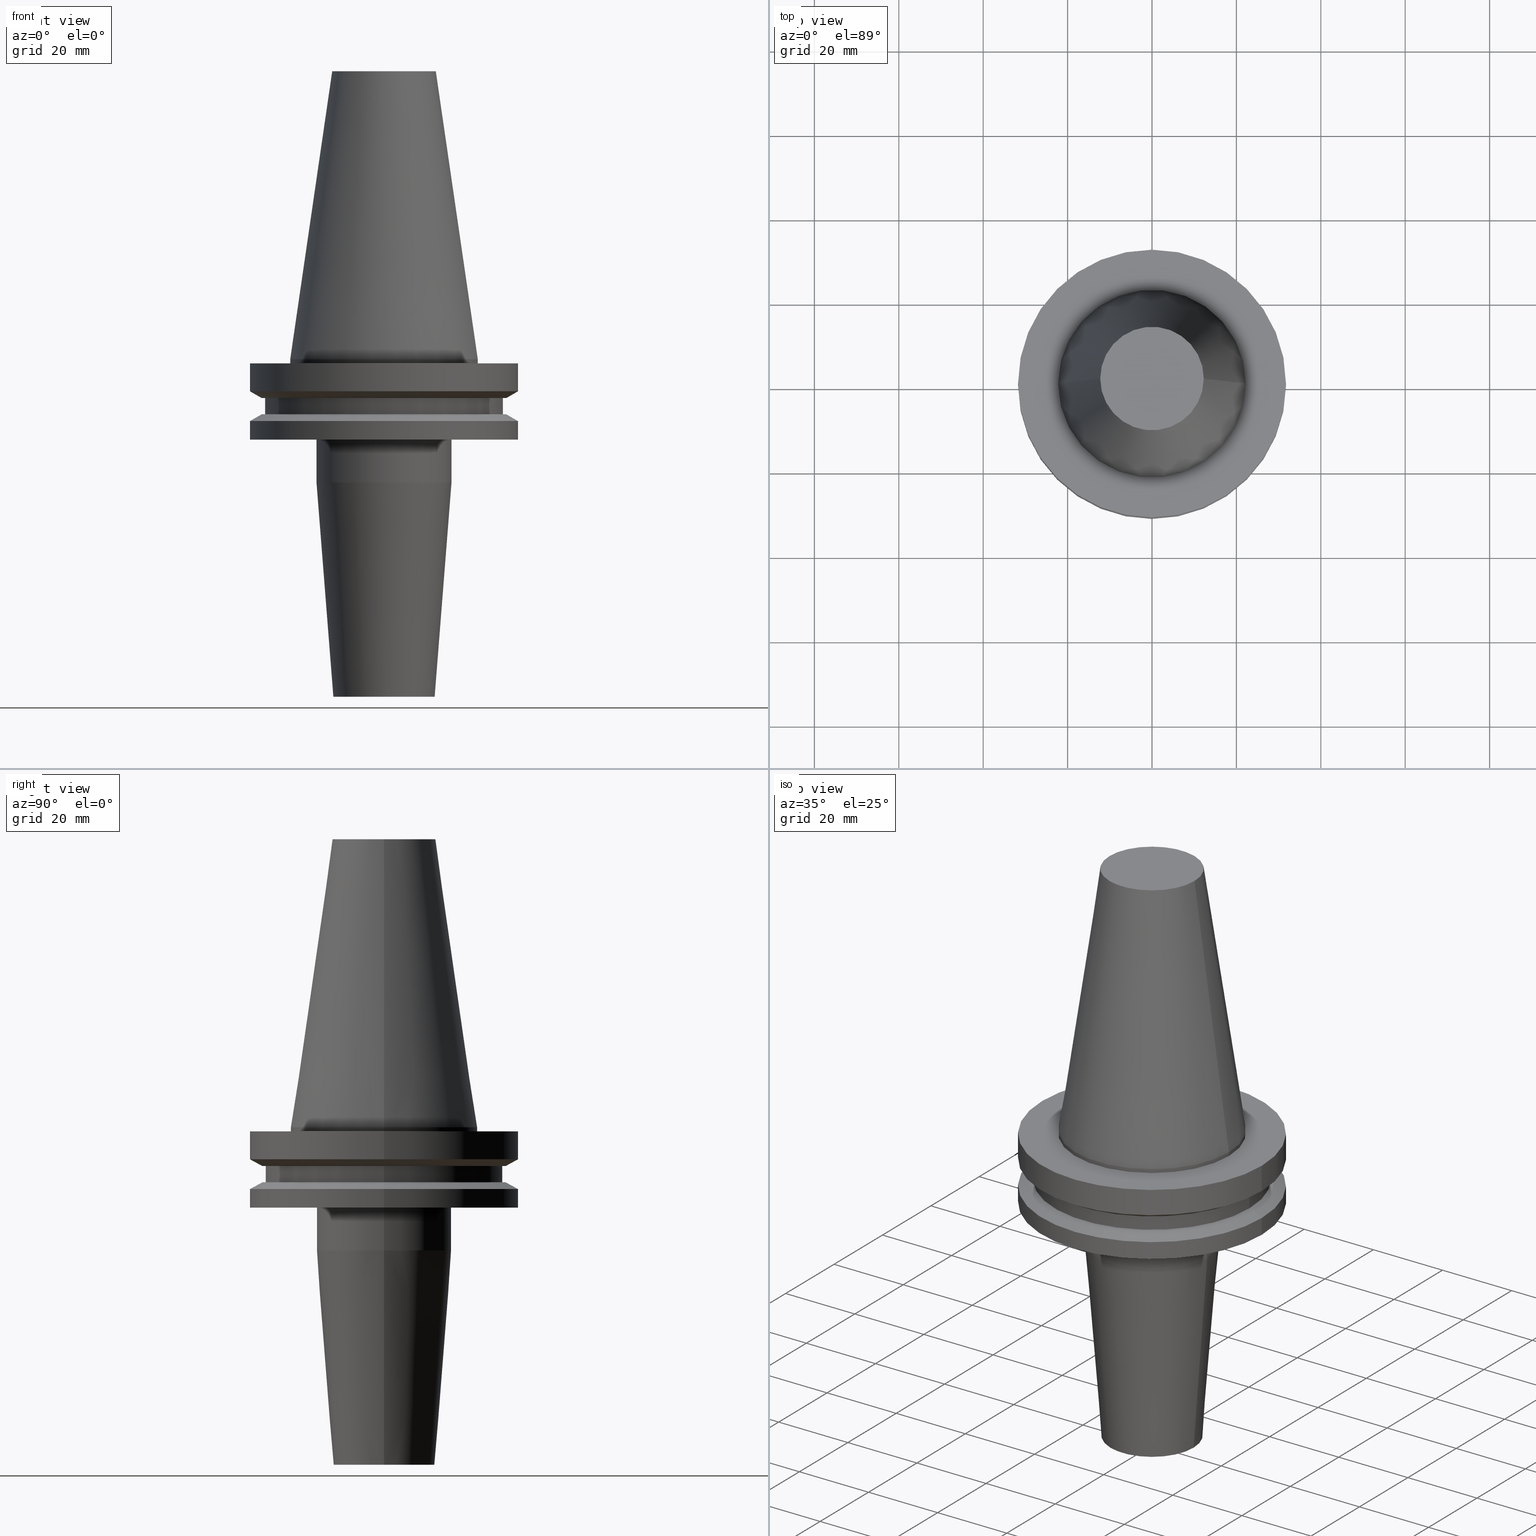
[diagram: canonical four-view strip — front | top / right | iso, engineering-drawing reading convention]
A machine part, canonical four-view strip (front | top / right | iso — engineering-drawing reading convention). The complete STEP part file that produces these views, byte-faithful:
ISO-10303-21;
HEADER;
FILE_DESCRIPTION (( 'STEP AP203' ),
    '1' );
FILE_NAME ('BCV40-SF12-80.STEP',
    '2022-02-23T17:13:26',
    ( '' ),
    ( '' ),
    'SwSTEP 2.0',
    'SolidWorks 2021',
    '' );
FILE_SCHEMA (( 'CONFIG_CONTROL_DESIGN' ));
ENDSEC;

DATA;
#1 = DIRECTION ( 'NONE',  ( -0.8660254037844389297, 1.060575238724907285E-16, 0.4999999999999995004 ) ) ;
#2 = ORIENTED_EDGE ( 'NONE', *, *, #80, .F. ) ;
#3 = AXIS2_PLACEMENT_3D ( 'NONE', #245, #418, #174 ) ;
#4 = ADVANCED_FACE ( 'NONE', ( #33 ), #757, .T. ) ;
#5 = CARTESIAN_POINT ( 'NONE',  ( -12.27178102086201150, 0.000000000000000000, 68.25000000000000000 ) ) ;
#6 = VERTEX_POINT ( 'NONE', #38 ) ;
#7 = MECHANICAL_CONTEXT ( 'NONE', #378, 'mechanical' ) ;
#8 = CONICAL_SURFACE ( 'NONE', #11, 31.75000000000000000, 1.047197551196597853 ) ;
#9 = EDGE_CURVE ( 'NONE', #224, #691, #81, .T. ) ;
#10 = VERTEX_POINT ( 'NONE', #78 ) ;
#11 = AXIS2_PLACEMENT_3D ( 'NONE', #342, #473, #530 ) ;
#12 = PERSON_AND_ORGANIZATION ( #540, #523 ) ;
#13 = CARTESIAN_POINT ( 'NONE',  ( 0.000000000000000000, 0.000000000000000000, 68.25000000000000000 ) ) ;
#14 = VERTEX_POINT ( 'NONE', #85 ) ;
#15 = CIRCLE ( 'NONE', #419, 15.99999999999999289 ) ;
#16 = EDGE_CURVE ( 'NONE', #54, #725, #193, .T. ) ;
#17 = DIRECTION ( 'NONE',  ( 1.000000000000000000, 0.000000000000000000, 0.000000000000000000 ) ) ;
#18 = CC_DESIGN_PERSON_AND_ORGANIZATION_ASSIGNMENT ( #391, #35, ( #675 ) ) ;
#19 = CIRCLE ( 'NONE', #263, 28.17999999999999972 ) ;
#20 = DIRECTION ( 'NONE',  ( -0.000000000000000000, -0.000000000000000000, 1.000000000000000000 ) ) ;
#21 = ORIENTED_EDGE ( 'NONE', *, *, #290, .T. ) ;
#22 = AXIS2_PLACEMENT_3D ( 'NONE', #87, #32, #459 ) ;
#23 = DATE_TIME_ROLE ( 'creation_date' ) ;
#24 = AXIS2_PLACEMENT_3D ( 'NONE', #611, #748, #386 ) ;
#25 = ORIENTED_EDGE ( 'NONE', *, *, #469, .F. ) ;
#26 = VERTEX_POINT ( 'NONE', #307 ) ;
#27 = CARTESIAN_POINT ( 'NONE',  ( 0.000000000000000000, 0.000000000000000000, -80.00000000000000000 ) ) ;
#28 = APPROVAL_STATUS ( 'not_yet_approved' ) ;
#29 = CIRCLE ( 'NONE', #673, 31.75000000000000000 ) ;
#30 = CC_DESIGN_SECURITY_CLASSIFICATION ( #355, ( #675 ) ) ;
#31 = EDGE_LOOP ( 'NONE', ( #127, #89, #602, #324 ) ) ;
#32 = DIRECTION ( 'NONE',  ( -0.000000000000000000, -0.000000000000000000, 1.000000000000000000 ) ) ;
#33 = FACE_OUTER_BOUND ( 'NONE', #308, .T. ) ;
#34 = ORIENTED_EDGE ( 'NONE', *, *, #589, .F. ) ;
#35 = PERSON_AND_ORGANIZATION_ROLE ( 'design_supplier' ) ;
#36 = DIRECTION ( 'NONE',  ( -0.000000000000000000, -0.000000000000000000, 1.000000000000000000 ) ) ;
#37 = AXIS2_PLACEMENT_3D ( 'NONE', #313, #560, #756 ) ;
#38 = CARTESIAN_POINT ( 'NONE',  ( -28.17999999999999972, 3.451054679997241634E-15, -9.204999999999991189 ) ) ;
#39 = ADVANCED_FACE ( 'NONE', ( #674 ), #257, .T. ) ;
#40 = DIRECTION ( 'NONE',  ( 1.000000000000000000, 0.000000000000000000, 0.000000000000000000 ) ) ;
#41 = CARTESIAN_POINT ( 'NONE',  ( 0.000000000000000000, 0.000000000000000000, 0.000000000000000000 ) ) ;
#42 = VERTEX_POINT ( 'NONE', #503 ) ;
#43 = PERSON_AND_ORGANIZATION ( #540, #523 ) ;
#44 = DIRECTION ( 'NONE',  ( 1.000000000000000000, 0.000000000000000000, 0.000000000000000000 ) ) ;
#45 = EDGE_CURVE ( 'NONE', #539, #26, #220, .T. ) ;
#46 = PLANE ( 'NONE',  #661 ) ;
#47 = VERTEX_POINT ( 'NONE', #135 ) ;
#48 = DIRECTION ( 'NONE',  ( 0.000000000000000000, -0.000000000000000000, 1.000000000000000000 ) ) ;
#49 = CARTESIAN_POINT ( 'NONE',  ( 22.22500000000000142, 2.721777511104992849E-15, 0.000000000000000000 ) ) ;
#50 = EDGE_LOOP ( 'NONE', ( #639, #276, #136, #590 ) ) ;
#51 = CYLINDRICAL_SURFACE ( 'NONE', #516, 31.75000000000000000 ) ;
#52 = LINE ( 'NONE', #524, #214 ) ;
#53 = ADVANCED_FACE ( 'NONE', ( #199 ), #185, .T. ) ;
#54 = VERTEX_POINT ( 'NONE', #451 ) ;
#55 = DIRECTION ( 'NONE',  ( 1.000000000000000000, 0.000000000000000000, 0.000000000000000000 ) ) ;
#56 = CARTESIAN_POINT ( 'NONE',  ( -31.75000000000000000, 3.888253587292846476E-15, -1.000000000000000888 ) ) ;
#57 = EDGE_LOOP ( 'NONE', ( #407, #495, #569, #230 ) ) ;
#58 = DIRECTION ( 'NONE',  ( 1.000000000000000000, 0.000000000000000000, 0.000000000000000000 ) ) ;
#59 = DIRECTION ( 'NONE',  ( 1.000000000000000000, 0.000000000000000000, 0.000000000000000000 ) ) ;
#60 = EDGE_LOOP ( 'NONE', ( #465, #556, #72, #196 ) ) ;
#61 = CIRCLE ( 'NONE', #92, 31.75000000000000000 ) ;
#62 = CARTESIAN_POINT ( 'NONE',  ( 0.000000000000000000, 0.000000000000000000, 68.25000000000000000 ) ) ;
#63 = EDGE_CURVE ( 'NONE', #26, #539, #607, .T. ) ;
#64 = FACE_OUTER_BOUND ( 'NONE', #498, .T. ) ;
#65 = ORIENTED_EDGE ( 'NONE', *, *, #366, .T. ) ;
#66 = CARTESIAN_POINT ( 'NONE',  ( -22.22500000000000142, 2.721777511104992849E-15, -1.000000000000000888 ) ) ;
#67 = AXIS2_PLACEMENT_3D ( 'NONE', #563, #258, #246 ) ;
#68 = ORIENTED_EDGE ( 'NONE', *, *, #390, .T. ) ;
#69 = LINE ( 'NONE', #345, #731 ) ;
#70 = EDGE_LOOP ( 'NONE', ( #654, #21, #549, #346 ) ) ;
#71 = ADVANCED_FACE ( 'NONE', ( #383 ), #634, .T. ) ;
#72 = ORIENTED_EDGE ( 'NONE', *, *, #718, .F. ) ;
#73 = PERSON_AND_ORGANIZATION ( #540, #523 ) ;
#74 = DIRECTION ( 'NONE',  ( -0.000000000000000000, -0.000000000000000000, 1.000000000000000000 ) ) ;
#75 = CARTESIAN_POINT ( 'NONE',  ( 0.000000000000000000, 0.000000000000000000, 0.000000000000000000 ) ) ;
#76 = CC_DESIGN_DATE_AND_TIME_ASSIGNMENT ( #550, #23, ( #297 ) ) ;
#77 = CALENDAR_DATE ( 2022, 23, 2 ) ;
#78 = CARTESIAN_POINT ( 'NONE',  ( 15.99999999999999289, 0.000000000000000000, -29.17518105529640948 ) ) ;
#79 = ORIENTED_EDGE ( 'NONE', *, *, #431, .T. ) ;
#80 = EDGE_CURVE ( 'NONE', #177, #691, #29, .T. ) ;
#81 = LINE ( 'NONE', #261, #320 ) ;
#82 = COORDINATED_UNIVERSAL_TIME_OFFSET ( 6, 0, .BEHIND. ) ;
#83 = EDGE_CURVE ( 'NONE', #47, #725, #314, .T. ) ;
#84 = VECTOR ( 'NONE', #323, 999.9999999999998863 ) ;
#85 = CARTESIAN_POINT ( 'NONE',  ( 12.27178102086201150, 2.112318622904291439E-15, 68.25000000000000000 ) ) ;
#86 = CIRCLE ( 'NONE', #37, 31.75000000000000000 ) ;
#87 = CARTESIAN_POINT ( 'NONE',  ( 0.000000000000000000, 0.000000000000000000, -19.04999999999999716 ) ) ;
#88 = MANIFOLD_SOLID_BREP ( 'SF Revolve2', #306 ) ;
#89 = ORIENTED_EDGE ( 'NONE', *, *, #326, .F. ) ;
#90 = PRODUCT_RELATED_PRODUCT_CATEGORY ( 'detail', '', ( #689 ) ) ;
#91 = CARTESIAN_POINT ( 'NONE',  ( 0.000000000000000000, 0.000000000000000000, -13.05499999999999794 ) ) ;
#92 = AXIS2_PLACEMENT_3D ( 'NONE', #266, #36, #260 ) ;
#93 = CARTESIAN_POINT ( 'NONE',  ( -15.99999999999999289, 1.959434878635764343E-15, -29.17518105529640948 ) ) ;
#94 = EDGE_CURVE ( 'NONE', #311, #47, #617, .T. ) ;
#95 = ORIENTED_EDGE ( 'NONE', *, *, #332, .T. ) ;
#96 = CARTESIAN_POINT ( 'NONE',  ( 0.000000000000000000, 0.000000000000000000, 0.000000000000000000 ) ) ;
#97 = DIRECTION ( 'NONE',  ( -0.07845909572783764385, 9.608468044709212160E-18, 0.9969173337331286300 ) ) ;
#98 = LOCAL_TIME ( 11, 13, 26.00000000000000000, #615 ) ;
#99 = EDGE_LOOP ( 'NONE', ( #633, #265, #651, #163 ) ) ;
#100 = CARTESIAN_POINT ( 'NONE',  ( 0.000000000000000000, 0.000000000000000000, -19.04999999999999716 ) ) ;
#101 = CARTESIAN_POINT ( 'NONE',  ( 31.75000000000000000, 0.000000000000000000, 68.25000000000000000 ) ) ;
#102 = EDGE_LOOP ( 'NONE', ( #642, #763, #330, #745 ) ) ;
#103 = CARTESIAN_POINT ( 'NONE',  ( 0.000000000000000000, 0.000000000000000000, -13.05499999999999794 ) ) ;
#104 = ADVANCED_FACE ( 'NONE', ( #622 ), #316, .T. ) ;
#105 = CARTESIAN_POINT ( 'NONE',  ( 0.000000000000000000, 0.000000000000000000, 68.25000000000000000 ) ) ;
#106 = ORIENTED_EDGE ( 'NONE', *, *, #424, .T. ) ;
#107 = CARTESIAN_POINT ( 'NONE',  ( 0.000000000000000000, 0.000000000000000000, -19.04999999999999716 ) ) ;
#108 = CARTESIAN_POINT ( 'NONE',  ( 31.75000000000000000, 0.000000000000000000, -1.000000000000000888 ) ) ;
#109 = ORIENTED_EDGE ( 'NONE', *, *, #275, .T. ) ;
#110 = LOCAL_TIME ( 11, 13, 26.00000000000000000, #82 ) ;
#111 = CARTESIAN_POINT ( 'NONE',  ( 0.000000000000000000, 0.000000000000000000, -13.05499999999999794 ) ) ;
#112 = CC_DESIGN_PERSON_AND_ORGANIZATION_ASSIGNMENT ( #73, #487, ( #297 ) ) ;
#113 = CARTESIAN_POINT ( 'NONE',  ( 31.75000000000000000, 0.000000000000000000, -7.605276606597335842 ) ) ;
#114 = AXIS2_PLACEMENT_3D ( 'NONE', #665, #537, #713 ) ;
#115 = EDGE_CURVE ( 'NONE', #618, #667, #732, .T. ) ;
#116 = ORIENTED_EDGE ( 'NONE', *, *, #644, .F. ) ;
#117 = DIRECTION ( 'NONE',  ( 1.000000000000000000, 0.000000000000000000, 0.000000000000000000 ) ) ;
#118 = CARTESIAN_POINT ( 'NONE',  ( 0.000000000000000000, 0.000000000000000000, 68.25000000000000000 ) ) ;
#119 = EDGE_LOOP ( 'NONE', ( #238, #593 ) ) ;
#120 = EDGE_CURVE ( 'NONE', #395, #187, #389, .T. ) ;
#121 = CARTESIAN_POINT ( 'NONE',  ( 0.000000000000000000, 0.000000000000000000, -80.00000000000000000 ) ) ;
#122 = DIRECTION ( 'NONE',  ( -0.000000000000000000, -0.000000000000000000, 1.000000000000000000 ) ) ;
#123 = VERTEX_POINT ( 'NONE', #632 ) ;
#124 = DIRECTION ( 'NONE',  ( -0.000000000000000000, -0.000000000000000000, 1.000000000000000000 ) ) ;
#125 = CYLINDRICAL_SURFACE ( 'NONE', #483, 31.75000000000000000 ) ;
#126 = AXIS2_PLACEMENT_3D ( 'NONE', #186, #752, #575 ) ;
#127 = ORIENTED_EDGE ( 'NONE', *, *, #180, .F. ) ;
#128 = DIRECTION ( 'NONE',  ( -0.000000000000000000, -0.000000000000000000, 1.000000000000000000 ) ) ;
#129 = CIRCLE ( 'NONE', #567, 31.74999999999999289 ) ;
#130 = LINE ( 'NONE', #608, #551 ) ;
#131 = ORIENTED_EDGE ( 'NONE', *, *, #413, .T. ) ;
#132 = CARTESIAN_POINT ( 'NONE',  ( -5.999999999999991118, 7.347880794884108889E-16, 0.000000000000000000 ) ) ;
#133 = FACE_OUTER_BOUND ( 'NONE', #647, .T. ) ;
#134 = DIRECTION ( 'NONE',  ( 1.000000000000000000, 0.000000000000000000, 0.000000000000000000 ) ) ;
#135 = CARTESIAN_POINT ( 'NONE',  ( -22.22500000000000142, 0.000000000000000000, 0.000000000000000000 ) ) ;
#136 = ORIENTED_EDGE ( 'NONE', *, *, #580, .F. ) ;
#137 = CARTESIAN_POINT ( 'NONE',  ( 22.22500000000000142, 0.000000000000000000, 68.25000000000000000 ) ) ;
#138 = CALENDAR_DATE ( 2022, 23, 2 ) ;
#139 = VERTEX_POINT ( 'NONE', #108 ) ;
#140 = APPROVAL ( #235, 'UNSPECIFIED' ) ;
#141 = DIRECTION ( 'NONE',  ( -1.000000000000000000, 0.000000000000000000, 0.000000000000000000 ) ) ;
#142 = DIRECTION ( 'NONE',  ( 1.000000000000000000, 0.000000000000000000, 0.000000000000000000 ) ) ;
#143 = APPROVAL_ROLE ( '' ) ;
#144 = CARTESIAN_POINT ( 'NONE',  ( 5.999999999999991118, 0.000000000000000000, 0.000000000000000000 ) ) ;
#145 = DIRECTION ( 'NONE',  ( -0.000000000000000000, -0.000000000000000000, 1.000000000000000000 ) ) ;
#146 = DATE_AND_TIME ( #501, #110 ) ;
#147 = CARTESIAN_POINT ( 'NONE',  ( -28.97919780457008088, 0.000000000000000000, -13.05499999999999794 ) ) ;
#148 = DIRECTION ( 'NONE',  ( -1.000000000000000000, 0.000000000000000000, 0.000000000000000000 ) ) ;
#149 = CONICAL_SURFACE ( 'NONE', #656, 22.22500000000000142, 0.1448138465474119174 ) ;
#150 = VERTEX_POINT ( 'NONE', #702 ) ;
#151 = CARTESIAN_POINT ( 'NONE',  ( 0.000000000000000000, 28.97919780457007732, -9.204999999999996518 ) ) ;
#152 = CARTESIAN_POINT ( 'NONE',  ( -22.22500000000000142, 2.721777511104992849E-15, 68.25000000000000000 ) ) ;
#153 = APPROVAL_PERSON_ORGANIZATION ( #325, #175, #737 ) ;
#154 = ORIENTED_EDGE ( 'NONE', *, *, #431, .F. ) ;
#155 = ADVANCED_FACE ( 'NONE', ( #274, #471 ), #336, .F. ) ;
#156 = DIRECTION ( 'NONE',  ( -0.000000000000000000, -0.000000000000000000, 1.000000000000000000 ) ) ;
#157 = LINE ( 'NONE', #152, #630 ) ;
#158 = EDGE_LOOP ( 'NONE', ( #750, #703 ) ) ;
#159 = AXIS2_PLACEMENT_3D ( 'NONE', #195, #749, #626 ) ;
#160 = CYLINDRICAL_SURFACE ( 'NONE', #328, 28.17999999999999972 ) ;
#161 = EDGE_CURVE ( 'NONE', #667, #6, #600, .T. ) ;
#162 = DIRECTION ( 'NONE',  ( -0.000000000000000000, -0.000000000000000000, 1.000000000000000000 ) ) ;
#163 = ORIENTED_EDGE ( 'NONE', *, *, #747, .F. ) ;
#164 = DIRECTION ( 'NONE',  ( 1.000000000000000000, 0.000000000000000000, 0.000000000000000000 ) ) ;
#165 = ORIENTED_EDGE ( 'NONE', *, *, #771, .T. ) ;
#166 = CARTESIAN_POINT ( 'NONE',  ( 28.17999999999999972, 0.000000000000000000, -13.05499999999999794 ) ) ;
#167 = FACE_OUTER_BOUND ( 'NONE', #102, .T. ) ;
#168 = EDGE_CURVE ( 'NONE', #54, #728, #764, .T. ) ;
#169 = ORIENTED_EDGE ( 'NONE', *, *, #449, .F. ) ;
#170 = DIRECTION ( 'NONE',  ( -0.000000000000000000, -0.000000000000000000, 1.000000000000000000 ) ) ;
#171 = AXIS2_PLACEMENT_3D ( 'NONE', #470, #583, #55 ) ;
#172 = FACE_OUTER_BOUND ( 'NONE', #227, .T. ) ;
#173 = EDGE_LOOP ( 'NONE', ( #472, #521, #437, #696 ) ) ;
#174 = DIRECTION ( 'NONE',  ( 1.000000000000000000, 0.000000000000000000, 0.000000000000000000 ) ) ;
#175 = APPROVAL ( #28, 'UNSPECIFIED' ) ;
#176 = DIRECTION ( 'NONE',  ( -0.000000000000000000, -0.000000000000000000, 1.000000000000000000 ) ) ;
#177 = VERTEX_POINT ( 'NONE', #638 ) ;
#178 = CIRCLE ( 'NONE', #684, 11.99999999999999289 ) ;
#179 = AXIS2_PLACEMENT_3D ( 'NONE', #217, #641, #758 ) ;
#180 = EDGE_CURVE ( 'NONE', #14, #725, #762, .T. ) ;
#181 = CARTESIAN_POINT ( 'NONE',  ( 0.000000000000000000, 0.000000000000000000, 68.25000000000000000 ) ) ;
#182 = ORIENTED_EDGE ( 'NONE', *, *, #479, .F. ) ;
#183 = DIRECTION ( 'NONE',  ( 1.000000000000000000, 0.000000000000000000, 0.000000000000000000 ) ) ;
#184 = EDGE_CURVE ( 'NONE', #150, #279, #52, .T. ) ;
#185 = CONICAL_SURFACE ( 'NONE', #281, 31.75000000000000000, 1.047197551196597853 ) ;
#186 = CARTESIAN_POINT ( 'NONE',  ( 0.000000000000000000, 12.27178102086201150, 68.25000000000000000 ) ) ;
#187 = VERTEX_POINT ( 'NONE', #56 ) ;
#188 = ADVANCED_FACE ( 'NONE', ( #209, #271 ), #46, .F. ) ;
#189 = ORIENTED_EDGE ( 'NONE', *, *, #589, .T. ) ;
#190 = ORIENTED_EDGE ( 'NONE', *, *, #558, .T. ) ;
#191 = CARTESIAN_POINT ( 'NONE',  ( 0.000000000000000000, 0.000000000000000000, -9.204999999999991189 ) ) ;
#192 = CC_DESIGN_APPROVAL ( #621, ( #355 ) ) ;
#193 = LINE ( 'NONE', #137, #497 ) ;
#194 = COORDINATED_UNIVERSAL_TIME_OFFSET ( 6, 0, .BEHIND. ) ;
#195 = CARTESIAN_POINT ( 'NONE',  ( 0.000000000000000000, 0.000000000000000000, -9.205000000000005400 ) ) ;
#196 = ORIENTED_EDGE ( 'NONE', *, *, #275, .F. ) ;
#197 = DATE_TIME_ROLE ( 'classification_date' ) ;
#198 = CARTESIAN_POINT ( 'NONE',  ( -5.999999999999993783, 7.347880794884111847E-16, -80.00000000000000000 ) ) ;
#199 = FACE_OUTER_BOUND ( 'NONE', #57, .T. ) ;
#200 = VERTEX_POINT ( 'NONE', #584 ) ;
#201 = CARTESIAN_POINT ( 'NONE',  ( 15.99999999999999289, 0.000000000000000000, 0.000000000000000000 ) ) ;
#202 = AXIS2_PLACEMENT_3D ( 'NONE', #360, #350, #183 ) ;
#203 = CARTESIAN_POINT ( 'NONE',  ( -5.999999999999989342, 7.347880794884107903E-16, -44.00000000000000711 ) ) ;
#204 = EDGE_LOOP ( 'NONE', ( #421, #269, #190, #116 ) ) ;
#205 = LINE ( 'NONE', #463, #387 ) ;
#206 = DIRECTION ( 'NONE',  ( -0.000000000000000000, -0.000000000000000000, 1.000000000000000000 ) ) ;
#207 = EDGE_LOOP ( 'NONE', ( #462, #298 ) ) ;
#208 = LINE ( 'NONE', #144, #554 ) ;
#209 = FACE_BOUND ( 'NONE', #364, .T. ) ;
#210 = VECTOR ( 'NONE', #601, 1000.000000000000000 ) ;
#211 = EDGE_LOOP ( 'NONE', ( #699, #318, #65, #481 ) ) ;
#212 = CARTESIAN_POINT ( 'NONE',  ( 0.000000000000000000, 0.000000000000000000, -19.04999999999999716 ) ) ;
#213 = FACE_OUTER_BOUND ( 'NONE', #31, .T. ) ;
#214 = VECTOR ( 'NONE', #97, 999.9999999999998863 ) ;
#215 = EDGE_LOOP ( 'NONE', ( #534, #707 ) ) ;
#216 = DIRECTION ( 'NONE',  ( 1.000000000000000000, 0.000000000000000000, 0.000000000000000000 ) ) ;
#217 = CARTESIAN_POINT ( 'NONE',  ( 0.000000000000000000, 0.000000000000000000, -1.000000000000000888 ) ) ;
#218 = ORIENTED_EDGE ( 'NONE', *, *, #531, .F. ) ;
#219 = AXIS2_PLACEMENT_3D ( 'NONE', #416, #657, #515 ) ;
#220 = CIRCLE ( 'NONE', #430, 5.999999999999993783 ) ;
#221 = CARTESIAN_POINT ( 'NONE',  ( 0.000000000000000000, 0.000000000000000000, 0.000000000000000000 ) ) ;
#222 = EDGE_CURVE ( 'NONE', #287, #150, #178, .T. ) ;
#223 = DIRECTION ( 'NONE',  ( 0.8660254037844389297, 0.000000000000000000, 0.4999999999999995004 ) ) ;
#224 = VERTEX_POINT ( 'NONE', #461 ) ;
#225 = DIRECTION ( 'NONE',  ( -0.000000000000000000, -0.000000000000000000, 1.000000000000000000 ) ) ;
#226 = DIRECTION ( 'NONE',  ( 0.07845909572783764385, 0.000000000000000000, 0.9969173337331286300 ) ) ;
#227 = EDGE_LOOP ( 'NONE', ( #546, #294 ) ) ;
#228 = CARTESIAN_POINT ( 'NONE',  ( 0.000000000000000000, 0.000000000000000000, 0.000000000000000000 ) ) ;
#229 = CARTESIAN_POINT ( 'NONE',  ( -28.97919780457007732, 3.718590885307660666E-15, -9.205000000000005400 ) ) ;
#230 = ORIENTED_EDGE ( 'NONE', *, *, #80, .T. ) ;
#231 = AXIS2_PLACEMENT_3D ( 'NONE', #62, #710, #282 ) ;
#232 = DIRECTION ( 'NONE',  ( 1.000000000000000000, 0.000000000000000000, 0.000000000000000000 ) ) ;
#233 = ADVANCED_FACE ( 'NONE', ( #527 ), #457, .F. ) ;
#234 = ORIENTED_EDGE ( 'NONE', *, *, #771, .F. ) ;
#235 = APPROVAL_STATUS ( 'not_yet_approved' ) ;
#236 = AXIS2_PLACEMENT_3D ( 'NONE', #517, #278, #754 ) ;
#237 = DIRECTION ( 'NONE',  ( 1.000000000000000000, 0.000000000000000000, 0.000000000000000000 ) ) ;
#238 = ORIENTED_EDGE ( 'NONE', *, *, #161, .T. ) ;
#239 = EDGE_CURVE ( 'NONE', #187, #139, #376, .T. ) ;
#240 = DIRECTION ( 'NONE',  ( 1.000000000000000000, 0.000000000000000000, 0.000000000000000000 ) ) ;
#241 = DIRECTION ( 'NONE',  ( 0.000000000000000000, -0.000000000000000000, 1.000000000000000000 ) ) ;
#242 = VECTOR ( 'NONE', #631, 1000.000000000000000 ) ;
#243 = CIRCLE ( 'NONE', #114, 28.97919780457008088 ) ;
#244 = VERTEX_POINT ( 'NONE', #203 ) ;
#245 = CARTESIAN_POINT ( 'NONE',  ( 0.000000000000000000, 0.000000000000000000, 0.000000000000000000 ) ) ;
#246 = DIRECTION ( 'NONE',  ( 1.000000000000000000, 0.000000000000000000, 0.000000000000000000 ) ) ;
#247 = ORIENTED_EDGE ( 'NONE', *, *, #405, .T. ) ;
#248 = CARTESIAN_POINT ( 'NONE',  ( -28.17999999999999972, 3.451054679997241634E-15, -13.05499999999999794 ) ) ;
#249 = ADVANCED_FACE ( 'NONE', ( #213 ), #149, .T. ) ;
#250 = DIRECTION ( 'NONE',  ( -1.000000000000000000, 0.000000000000000000, 0.000000000000000000 ) ) ;
#251 = ADVANCED_BREP_SHAPE_REPRESENTATION ( 'BCV40-SF12-80', ( #88, #3 ), #369 ) ;
#252 = AXIS2_PLACEMENT_3D ( 'NONE', #75, #552, #142 ) ;
#253 = CIRCLE ( 'NONE', #202, 31.75000000000000000 ) ;
#254 = CARTESIAN_POINT ( 'NONE',  ( -22.22500000000000142, 0.000000000000000000, 0.000000000000000000 ) ) ;
#255 = ORIENTED_EDGE ( 'NONE', *, *, #644, .T. ) ;
#256 = DIRECTION ( 'NONE',  ( 1.000000000000000000, 0.000000000000000000, 0.000000000000000000 ) ) ;
#257 = CONICAL_SURFACE ( 'NONE', #361, 11.99999999999999289, 0.07853981633973751431 ) ;
#258 = DIRECTION ( 'NONE',  ( -0.000000000000000000, -0.000000000000000000, 1.000000000000000000 ) ) ;
#259 = ADVANCED_FACE ( 'NONE', ( #577 ), #698, .T. ) ;
#260 = DIRECTION ( 'NONE',  ( 1.000000000000000000, 0.000000000000000000, 0.000000000000000000 ) ) ;
#261 = CARTESIAN_POINT ( 'NONE',  ( 31.75000000000000000, 3.888253587292846476E-15, -14.65472339340266572 ) ) ;
#262 = PLANE ( 'NONE',  #126 ) ;
#263 = AXIS2_PLACEMENT_3D ( 'NONE', #191, #128, #720 ) ;
#264 = CARTESIAN_POINT ( 'NONE',  ( -31.75000000000000000, 3.888253587292846476E-15, 68.25000000000000000 ) ) ;
#265 = ORIENTED_EDGE ( 'NONE', *, *, #449, .T. ) ;
#266 = CARTESIAN_POINT ( 'NONE',  ( 0.000000000000000000, 0.000000000000000000, -1.000000000000000888 ) ) ;
#267 = EDGE_CURVE ( 'NONE', #728, #47, #157, .T. ) ;
#268 = CARTESIAN_POINT ( 'NONE',  ( 0.000000000000000000, 0.000000000000000000, -9.204999999999991189 ) ) ;
#269 = ORIENTED_EDGE ( 'NONE', *, *, #304, .T. ) ;
#270 = FACE_OUTER_BOUND ( 'NONE', #207, .T. ) ;
#271 = FACE_OUTER_BOUND ( 'NONE', #158, .T. ) ;
#272 = ORIENTED_EDGE ( 'NONE', *, *, #120, .T. ) ;
#273 = CARTESIAN_POINT ( 'NONE',  ( 31.75000000000000000, 0.000000000000000000, -14.65472339340266572 ) ) ;
#274 = FACE_BOUND ( 'NONE', #619, .T. ) ;
#275 = EDGE_CURVE ( 'NONE', #42, #691, #628, .T. ) ;
#276 = ORIENTED_EDGE ( 'NONE', *, *, #267, .T. ) ;
#277 = CYLINDRICAL_SURFACE ( 'NONE', #685, 15.99999999999999289 ) ;
#278 = DIRECTION ( 'NONE',  ( -0.000000000000000000, -0.000000000000000000, 1.000000000000000000 ) ) ;
#279 = VERTEX_POINT ( 'NONE', #93 ) ;
#280 = ADVANCED_FACE ( 'NONE', ( #484 ), #296, .T. ) ;
#281 = AXIS2_PLACEMENT_3D ( 'NONE', #441, #371, #250 ) ;
#282 = DIRECTION ( 'NONE',  ( 1.000000000000000000, 0.000000000000000000, 0.000000000000000000 ) ) ;
#283 = LINE ( 'NONE', #352, #210 ) ;
#284 = VERTEX_POINT ( 'NONE', #229 ) ;
#285 = CARTESIAN_POINT ( 'NONE',  ( 0.000000000000000000, 28.17999999999999972, -13.05499999999999794 ) ) ;
#286 = CYLINDRICAL_SURFACE ( 'NONE', #344, 22.22500000000000142 ) ;
#287 = VERTEX_POINT ( 'NONE', #724 ) ;
#288 = VECTOR ( 'NONE', #124, 1000.000000000000000 ) ;
#289 = DIRECTION ( 'NONE',  ( -0.000000000000000000, -0.000000000000000000, 1.000000000000000000 ) ) ;
#290 = EDGE_CURVE ( 'NONE', #709, #6, #69, .T. ) ;
#291 = ORIENTED_EDGE ( 'NONE', *, *, #479, .T. ) ;
#292 = FACE_OUTER_BOUND ( 'NONE', #504, .T. ) ;
#293 = EDGE_CURVE ( 'NONE', #10, #279, #557, .T. ) ;
#294 = ORIENTED_EDGE ( 'NONE', *, *, #356, .F. ) ;
#295 = APPROVAL_ROLE ( '' ) ;
#296 = CYLINDRICAL_SURFACE ( 'NONE', #595, 22.22500000000000142 ) ;
#297 = PRODUCT_DEFINITION ( 'UNKNOWN', '', #675, #445 ) ;
#298 = ORIENTED_EDGE ( 'NONE', *, *, #753, .F. ) ;
#299 = EDGE_CURVE ( 'NONE', #279, #123, #283, .T. ) ;
#300 = COORDINATED_UNIVERSAL_TIME_OFFSET ( 6, 0, .BEHIND. ) ;
#301 = DIRECTION ( 'NONE',  ( -0.000000000000000000, -0.000000000000000000, 1.000000000000000000 ) ) ;
#302 = ORIENTED_EDGE ( 'NONE', *, *, #9, .T. ) ;
#303 = CALENDAR_DATE ( 2022, 23, 2 ) ;
#304 = EDGE_CURVE ( 'NONE', #279, #10, #760, .T. ) ;
#305 = UNCERTAINTY_MEASURE_WITH_UNIT (LENGTH_MEASURE( 1.000000000000000082E-05 ), #723, 'distance_accuracy_value', 'NONE');
#306 = CLOSED_SHELL ( 'NONE', ( #502, #394, #104, #280, #456, #71, #614, #625, #604, #545, #249, #493, #155, #315, #53, #599, #695, #485, #4, #259, #188, #363, #705, #39, #650, #233, #351 ) ) ;
#307 = CARTESIAN_POINT ( 'NONE',  ( 5.999999999999993783, 0.000000000000000000, -80.00000000000000000 ) ) ;
#308 = EDGE_LOOP ( 'NONE', ( #399, #79, #95, #234 ) ) ;
#309 = AXIS2_PLACEMENT_3D ( 'NONE', #420, #122, #237 ) ;
#310 = DIRECTION ( 'NONE',  ( 1.000000000000000000, 0.000000000000000000, 0.000000000000000000 ) ) ;
#311 = VERTEX_POINT ( 'NONE', #5 ) ;
#312 = DATE_AND_TIME ( #138, #439 ) ;
#313 = CARTESIAN_POINT ( 'NONE',  ( 0.000000000000000000, 0.000000000000000000, -7.605276606597335842 ) ) ;
#314 = CIRCLE ( 'NONE', #252, 22.22500000000000142 ) ;
#315 = ADVANCED_FACE ( 'NONE', ( #292 ), #125, .T. ) ;
#316 = CYLINDRICAL_SURFACE ( 'NONE', #67, 15.99999999999999289 ) ;
#317 = VECTOR ( 'NONE', #223, 1000.000000000000000 ) ;
#318 = ORIENTED_EDGE ( 'NONE', *, *, #753, .T. ) ;
#319 = CARTESIAN_POINT ( 'NONE',  ( 28.97919780457007732, 0.000000000000000000, -9.205000000000005400 ) ) ;
#320 = VECTOR ( 'NONE', #510, 1000.000000000000000 ) ;
#321 = CARTESIAN_POINT ( 'NONE',  ( 0.000000000000000000, 0.000000000000000000, -14.65472339340266572 ) ) ;
#322 = DIRECTION ( 'NONE',  ( 1.000000000000000000, 0.000000000000000000, 0.000000000000000000 ) ) ;
#323 = DIRECTION ( 'NONE',  ( 0.1443082272672999711, 1.767266086135276757E-17, -0.9895327864921755756 ) ) ;
#324 = ORIENTED_EDGE ( 'NONE', *, *, #83, .T. ) ;
#325 = PERSON_AND_ORGANIZATION ( #540, #523 ) ;
#326 = EDGE_CURVE ( 'NONE', #311, #14, #440, .T. ) ;
#327 = CYLINDRICAL_SURFACE ( 'NONE', #588, 31.75000000000000000 ) ;
#328 = AXIS2_PLACEMENT_3D ( 'NONE', #766, #339, #216 ) ;
#329 = CARTESIAN_POINT ( 'NONE',  ( 0.000000000000000000, 31.74999999999999289, -19.04999999999999716 ) ) ;
#330 = ORIENTED_EDGE ( 'NONE', *, *, #293, .F. ) ;
#331 = CARTESIAN_POINT ( 'NONE',  ( 0.000000000000000000, 0.000000000000000000, 68.25000000000000000 ) ) ;
#332 = EDGE_CURVE ( 'NONE', #486, #338, #358, .T. ) ;
#333 = DIRECTION ( 'NONE',  ( -0.000000000000000000, -0.000000000000000000, 1.000000000000000000 ) ) ;
#334 = ORIENTED_EDGE ( 'NONE', *, *, #555, .F. ) ;
#335 = DIRECTION ( 'NONE',  ( 1.000000000000000000, 0.000000000000000000, 0.000000000000000000 ) ) ;
#336 = PLANE ( 'NONE',  #397 ) ;
#337 = VECTOR ( 'NONE', #333, 1000.000000000000000 ) ;
#338 = VERTEX_POINT ( 'NONE', #113 ) ;
#339 = DIRECTION ( 'NONE',  ( -0.000000000000000000, -0.000000000000000000, 1.000000000000000000 ) ) ;
#340 = CARTESIAN_POINT ( 'NONE',  ( 28.17999999999999972, 0.000000000000000000, 68.25000000000000000 ) ) ;
#341 = ORIENTED_EDGE ( 'NONE', *, *, #558, .F. ) ;
#342 = CARTESIAN_POINT ( 'NONE',  ( 0.000000000000000000, 0.000000000000000000, -14.65472339340266572 ) ) ;
#343 = CIRCLE ( 'NONE', #616, 22.22500000000000142 ) ;
#344 = AXIS2_PLACEMENT_3D ( 'NONE', #13, #362, #412 ) ;
#345 = CARTESIAN_POINT ( 'NONE',  ( -28.17999999999999972, 3.451054679997241634E-15, 68.25000000000000000 ) ) ;
#346 = ORIENTED_EDGE ( 'NONE', *, *, #115, .F. ) ;
#347 = FACE_BOUND ( 'NONE', #606, .T. ) ;
#348 = DIRECTION ( 'NONE',  ( -0.000000000000000000, -0.000000000000000000, 1.000000000000000000 ) ) ;
#349 = ORIENTED_EDGE ( 'NONE', *, *, #120, .F. ) ;
#350 = DIRECTION ( 'NONE',  ( -0.000000000000000000, -0.000000000000000000, 1.000000000000000000 ) ) ;
#351 = ADVANCED_FACE ( 'NONE', ( #172 ), #480, .F. ) ;
#352 = CARTESIAN_POINT ( 'NONE',  ( -15.99999999999999289, 1.959434878635764343E-15, 0.000000000000000000 ) ) ;
#353 = AXIS2_PLACEMENT_3D ( 'NONE', #268, #145, #520 ) ;
#354 = ORIENTED_EDGE ( 'NONE', *, *, #63, .F. ) ;
#355 = SECURITY_CLASSIFICATION ( '', '', #379 ) ;
#356 = EDGE_CURVE ( 'NONE', #244, #578, #384, .T. ) ;
#357 = AXIS2_PLACEMENT_3D ( 'NONE', #541, #773, #232 ) ;
#358 = LINE ( 'NONE', #426, #317 ) ;
#359 = ORIENTED_EDGE ( 'NONE', *, *, #168, .F. ) ;
#360 = CARTESIAN_POINT ( 'NONE',  ( 0.000000000000000000, 0.000000000000000000, -7.605276606597335842 ) ) ;
#361 = AXIS2_PLACEMENT_3D ( 'NONE', #27, #679, #367 ) ;
#362 = DIRECTION ( 'NONE',  ( -0.000000000000000000, -0.000000000000000000, 1.000000000000000000 ) ) ;
#363 = ADVANCED_FACE ( 'NONE', ( #64 ), #286, .T. ) ;
#364 = EDGE_LOOP ( 'NONE', ( #359, #34 ) ) ;
#365 = FACE_OUTER_BOUND ( 'NONE', #215, .T. ) ;
#366 = EDGE_CURVE ( 'NONE', #287, #10, #533, .T. ) ;
#367 = DIRECTION ( 'NONE',  ( 1.000000000000000000, 0.000000000000000000, 0.000000000000000000 ) ) ;
#368 =( NAMED_UNIT ( * ) SI_UNIT ( $, .STERADIAN. ) SOLID_ANGLE_UNIT ( ) );
#369 =( GEOMETRIC_REPRESENTATION_CONTEXT ( 3 ) GLOBAL_UNCERTAINTY_ASSIGNED_CONTEXT ( ( #305 ) ) GLOBAL_UNIT_ASSIGNED_CONTEXT ( ( #723, #610, #368 ) ) REPRESENTATION_CONTEXT ( 'NONE', 'WORKASPACE' ) );
#370 = AXIS2_PLACEMENT_3D ( 'NONE', #285, #415, #772 ) ;
#371 = DIRECTION ( 'NONE',  ( 0.000000000000000000, 0.000000000000000000, -1.000000000000000000 ) ) ;
#372 = ORIENTED_EDGE ( 'NONE', *, *, #405, .F. ) ;
#373 = DIRECTION ( 'NONE',  ( -0.000000000000000000, -0.000000000000000000, 1.000000000000000000 ) ) ;
#374 = DATE_AND_TIME ( #680, #623 ) ;
#375 = EDGE_CURVE ( 'NONE', #447, #224, #243, .T. ) ;
#376 = CIRCLE ( 'NONE', #475, 31.75000000000000000 ) ;
#377 = DIRECTION ( 'NONE',  ( 1.000000000000000000, 0.000000000000000000, 0.000000000000000000 ) ) ;
#378 = APPLICATION_CONTEXT ( 'configuration controlled 3d designs of mechanical parts and assemblies' ) ;
#379 = SECURITY_CLASSIFICATION_LEVEL ( 'unclassified' ) ;
#380 = FACE_OUTER_BOUND ( 'NONE', #742, .T. ) ;
#381 = AXIS2_PLACEMENT_3D ( 'NONE', #683, #677, #377 ) ;
#382 = CIRCLE ( 'NONE', #712, 11.99999999999999289 ) ;
#383 = FACE_OUTER_BOUND ( 'NONE', #525, .T. ) ;
#384 = CIRCLE ( 'NONE', #425, 5.999999999999989342 ) ;
#385 = COORDINATED_UNIVERSAL_TIME_OFFSET ( 6, 0, .BEHIND. ) ;
#386 = DIRECTION ( 'NONE',  ( 1.000000000000000000, 0.000000000000000000, 0.000000000000000000 ) ) ;
#387 = VECTOR ( 'NONE', #627, 1000.000000000000000 ) ;
#388 = AXIS2_PLACEMENT_3D ( 'NONE', #612, #301, #740 ) ;
#389 = LINE ( 'NONE', #264, #700 ) ;
#390 = EDGE_CURVE ( 'NONE', #284, #395, #130, .T. ) ;
#391 = PERSON_AND_ORGANIZATION ( #540, #523 ) ;
#392 = FACE_OUTER_BOUND ( 'NONE', #491, .T. ) ;
#393 = DIRECTION ( 'NONE',  ( -0.000000000000000000, -0.000000000000000000, 1.000000000000000000 ) ) ;
#394 = ADVANCED_FACE ( 'NONE', ( #167 ), #460, .T. ) ;
#395 = VERTEX_POINT ( 'NONE', #686 ) ;
#396 = DIRECTION ( 'NONE',  ( -0.000000000000000000, -0.000000000000000000, 1.000000000000000000 ) ) ;
#397 = AXIS2_PLACEMENT_3D ( 'NONE', #329, #402, #581 ) ;
#398 = DIRECTION ( 'NONE',  ( 1.000000000000000000, 0.000000000000000000, 0.000000000000000000 ) ) ;
#399 = ORIENTED_EDGE ( 'NONE', *, *, #390, .F. ) ;
#400 = AXIS2_PLACEMENT_3D ( 'NONE', #103, #704, #335 ) ;
#401 = CARTESIAN_POINT ( 'NONE',  ( 0.000000000000000000, 0.000000000000000000, 68.25000000000000000 ) ) ;
#402 = DIRECTION ( 'NONE',  ( 0.000000000000000000, -0.000000000000000000, 1.000000000000000000 ) ) ;
#403 = ORIENTED_EDGE ( 'NONE', *, *, #443, .F. ) ;
#404 = DIRECTION ( 'NONE',  ( -0.000000000000000000, -0.000000000000000000, 1.000000000000000000 ) ) ;
#405 = EDGE_CURVE ( 'NONE', #486, #284, #429, .T. ) ;
#406 = DIRECTION ( 'NONE',  ( 1.000000000000000000, 0.000000000000000000, 0.000000000000000000 ) ) ;
#407 = ORIENTED_EDGE ( 'NONE', *, *, #9, .F. ) ;
#408 = DIRECTION ( 'NONE',  ( -0.000000000000000000, -0.000000000000000000, 1.000000000000000000 ) ) ;
#409 = DIRECTION ( 'NONE',  ( 1.000000000000000000, 0.000000000000000000, 0.000000000000000000 ) ) ;
#410 = ORIENTED_EDGE ( 'NONE', *, *, #564, .F. ) ;
#411 = PLANE ( 'NONE',  #370 ) ;
#412 = DIRECTION ( 'NONE',  ( 1.000000000000000000, 0.000000000000000000, 0.000000000000000000 ) ) ;
#413 = EDGE_CURVE ( 'NONE', #26, #578, #208, .T. ) ;
#414 = EDGE_LOOP ( 'NONE', ( #770, #714, #182, #341 ) ) ;
#415 = DIRECTION ( 'NONE',  ( 0.000000000000000000, 0.000000000000000000, -1.000000000000000000 ) ) ;
#416 = CARTESIAN_POINT ( 'NONE',  ( 0.000000000000000000, 0.000000000000000000, -80.00000000000000000 ) ) ;
#417 = ORIENTED_EDGE ( 'NONE', *, *, #267, .F. ) ;
#418 = DIRECTION ( 'NONE',  ( 0.000000000000000000, 0.000000000000000000, 1.000000000000000000 ) ) ;
#419 = AXIS2_PLACEMENT_3D ( 'NONE', #107, #156, #117 ) ;
#420 = CARTESIAN_POINT ( 'NONE',  ( 0.000000000000000000, 0.000000000000000000, -29.17518105529640948 ) ) ;
#421 = ORIENTED_EDGE ( 'NONE', *, *, #299, .F. ) ;
#422 = CIRCLE ( 'NONE', #637, 31.75000000000000000 ) ;
#423 = DATE_AND_TIME ( #77, #98 ) ;
#424 = EDGE_CURVE ( 'NONE', #200, #42, #129, .T. ) ;
#425 = AXIS2_PLACEMENT_3D ( 'NONE', #490, #605, #409 ) ;
#426 = CARTESIAN_POINT ( 'NONE',  ( 28.97919780457007732, 0.000000000000000000, -9.205000000000005400 ) ) ;
#427 = ORIENTED_EDGE ( 'NONE', *, *, #741, .F. ) ;
#428 = PERSON_AND_ORGANIZATION ( #540, #523 ) ;
#429 = CIRCLE ( 'NONE', #666, 28.97919780457007732 ) ;
#430 = AXIS2_PLACEMENT_3D ( 'NONE', #433, #672, #134 ) ;
#431 = EDGE_CURVE ( 'NONE', #284, #486, #528, .T. ) ;
#432 = CYLINDRICAL_SURFACE ( 'NONE', #561, 5.999999999999991118 ) ;
#433 = CARTESIAN_POINT ( 'NONE',  ( 0.000000000000000000, 0.000000000000000000, -80.00000000000000000 ) ) ;
#434 = AXIS2_PLACEMENT_3D ( 'NONE', #105, #467, #690 ) ;
#435 = CARTESIAN_POINT ( 'NONE',  ( 22.22500000000000142, 2.721777511104992849E-15, 0.000000000000000000 ) ) ;
#436 = DIRECTION ( 'NONE',  ( -0.000000000000000000, -0.000000000000000000, 1.000000000000000000 ) ) ;
#437 = ORIENTED_EDGE ( 'NONE', *, *, #580, .T. ) ;
#438 = DIRECTION ( 'NONE',  ( 1.000000000000000000, 0.000000000000000000, 0.000000000000000000 ) ) ;
#439 = LOCAL_TIME ( 11, 13, 26.00000000000000000, #194 ) ;
#440 = CIRCLE ( 'NONE', #738, 12.27178102086201150 ) ;
#441 = CARTESIAN_POINT ( 'NONE',  ( 0.000000000000000000, 0.000000000000000000, -14.65472339340266572 ) ) ;
#442 = CIRCLE ( 'NONE', #171, 5.999999999999989342 ) ;
#443 = EDGE_CURVE ( 'NONE', #447, #177, #205, .T. ) ;
#444 = PERSON_AND_ORGANIZATION_ROLE ( 'creator' ) ;
#445 = DESIGN_CONTEXT ( 'detailed design', #729, 'design' ) ;
#446 = CIRCLE ( 'NONE', #744, 12.27178102086201150 ) ;
#447 = VERTEX_POINT ( 'NONE', #147 ) ;
#448 = ORIENTED_EDGE ( 'NONE', *, *, #564, .T. ) ;
#449 = EDGE_CURVE ( 'NONE', #709, #618, #496, .T. ) ;
#450 = CARTESIAN_POINT ( 'NONE',  ( -31.75000000000000000, 3.888253587292846476E-15, 68.25000000000000000 ) ) ;
#451 = CARTESIAN_POINT ( 'NONE',  ( 22.22500000000000142, 0.000000000000000000, -1.000000000000000888 ) ) ;
#452 = EDGE_LOOP ( 'NONE', ( #349, #165, #529, #542 ) ) ;
#453 = SHAPE_DEFINITION_REPRESENTATION ( #571, #251 ) ;
#454 = DIRECTION ( 'NONE',  ( -0.000000000000000000, -0.000000000000000000, 1.000000000000000000 ) ) ;
#455 = CC_DESIGN_APPROVAL ( #140, ( #297 ) ) ;
#456 = ADVANCED_FACE ( 'NONE', ( #380 ), #327, .T. ) ;
#457 = CYLINDRICAL_SURFACE ( 'NONE', #236, 5.999999999999991118 ) ;
#458 = VECTOR ( 'NONE', #226, 999.9999999999998863 ) ;
#459 = DIRECTION ( 'NONE',  ( 1.000000000000000000, 0.000000000000000000, 0.000000000000000000 ) ) ;
#460 = CONICAL_SURFACE ( 'NONE', #219, 11.99999999999999289, 0.07853981633973751431 ) ;
#461 = CARTESIAN_POINT ( 'NONE',  ( 28.97919780457008088, 3.718590885307660666E-15, -13.05499999999999794 ) ) ;
#462 = ORIENTED_EDGE ( 'NONE', *, *, #222, .F. ) ;
#463 = CARTESIAN_POINT ( 'NONE',  ( -31.75000000000000000, 0.000000000000000000, -14.65472339340266572 ) ) ;
#464 = DIRECTION ( 'NONE',  ( 0.000000000000000000, 0.000000000000000000, -1.000000000000000000 ) ) ;
#465 = ORIENTED_EDGE ( 'NONE', *, *, #660, .T. ) ;
#466 = CARTESIAN_POINT ( 'NONE',  ( 0.000000000000000000, 0.000000000000000000, -1.000000000000000888 ) ) ;
#467 = DIRECTION ( 'NONE',  ( -0.000000000000000000, -0.000000000000000000, 1.000000000000000000 ) ) ;
#468 = ORIENTED_EDGE ( 'NONE', *, *, #45, .F. ) ;
#469 = EDGE_CURVE ( 'NONE', #200, #177, #505, .T. ) ;
#470 = CARTESIAN_POINT ( 'NONE',  ( 0.000000000000000000, 0.000000000000000000, -44.00000000000000711 ) ) ;
#471 = FACE_OUTER_BOUND ( 'NONE', #658, .T. ) ;
#472 = ORIENTED_EDGE ( 'NONE', *, *, #635, .F. ) ;
#473 = DIRECTION ( 'NONE',  ( 0.000000000000000000, 0.000000000000000000, -1.000000000000000000 ) ) ;
#474 = CIRCLE ( 'NONE', #669, 31.74999999999999289 ) ;
#475 = AXIS2_PLACEMENT_3D ( 'NONE', #645, #206, #398 ) ;
#476 = DIRECTION ( 'NONE',  ( 1.000000000000000000, 0.000000000000000000, 0.000000000000000000 ) ) ;
#477 = EDGE_LOOP ( 'NONE', ( #755, #448 ) ) ;
#478 = FACE_OUTER_BOUND ( 'NONE', #477, .T. ) ;
#479 = EDGE_CURVE ( 'NONE', #585, #123, #687, .T. ) ;
#480 = PLANE ( 'NONE',  #769 ) ;
#481 = ORIENTED_EDGE ( 'NONE', *, *, #304, .F. ) ;
#482 = DIRECTION ( 'NONE',  ( 1.000000000000000000, 0.000000000000000000, 0.000000000000000000 ) ) ;
#483 = AXIS2_PLACEMENT_3D ( 'NONE', #118, #176, #488 ) ;
#484 = FACE_OUTER_BOUND ( 'NONE', #50, .T. ) ;
#485 = ADVANCED_FACE ( 'NONE', ( #133, #570 ), #743, .F. ) ;
#486 = VERTEX_POINT ( 'NONE', #319 ) ;
#487 = PERSON_AND_ORGANIZATION_ROLE ( 'creator' ) ;
#488 = DIRECTION ( 'NONE',  ( 1.000000000000000000, 0.000000000000000000, 0.000000000000000000 ) ) ;
#489 = EDGE_LOOP ( 'NONE', ( #759, #354, #131, #722 ) ) ;
#490 = CARTESIAN_POINT ( 'NONE',  ( 0.000000000000000000, 0.000000000000000000, -44.00000000000000711 ) ) ;
#491 = EDGE_LOOP ( 'NONE', ( #468, #565, #500, #518 ) ) ;
#492 = CARTESIAN_POINT ( 'NONE',  ( 31.75000000000000000, 0.000000000000000000, 68.25000000000000000 ) ) ;
#493 = ADVANCED_FACE ( 'NONE', ( #365 ), #262, .F. ) ;
#494 = DIRECTION ( 'NONE',  ( -0.000000000000000000, -0.000000000000000000, 1.000000000000000000 ) ) ;
#495 = ORIENTED_EDGE ( 'NONE', *, *, #375, .F. ) ;
#496 = CIRCLE ( 'NONE', #692, 28.17999999999999972 ) ;
#497 = VECTOR ( 'NONE', #436, 1000.000000000000000 ) ;
#498 = EDGE_LOOP ( 'NONE', ( #417, #189, #597, #511 ) ) ;
#499 = VECTOR ( 'NONE', #454, 1000.000000000000000 ) ;
#500 = ORIENTED_EDGE ( 'NONE', *, *, #356, .T. ) ;
#501 = CALENDAR_DATE ( 2022, 23, 2 ) ;
#502 = ADVANCED_FACE ( 'NONE', ( #392 ), #432, .F. ) ;
#503 = CARTESIAN_POINT ( 'NONE',  ( 31.74999999999999289, 0.000000000000000000, -19.04999999999999716 ) ) ;
#504 = EDGE_LOOP ( 'NONE', ( #25, #106, #109, #2 ) ) ;
#505 = LINE ( 'NONE', #450, #242 ) ;
#506 = ORIENTED_EDGE ( 'NONE', *, *, #660, .F. ) ;
#507 = CONICAL_SURFACE ( 'NONE', #532, 22.22500000000000142, 0.1448138465474119174 ) ;
#508 = APPROVAL_DATE_TIME ( #312, #175 ) ;
#509 = LINE ( 'NONE', #201, #499 ) ;
#510 = DIRECTION ( 'NONE',  ( 0.8660254037844387076, 1.060575238724906915E-16, -0.4999999999999998890 ) ) ;
#511 = ORIENTED_EDGE ( 'NONE', *, *, #83, .F. ) ;
#512 = CARTESIAN_POINT ( 'NONE',  ( 0.000000000000000000, 31.75000000000000000, -0.9999999999999995559 ) ) ;
#513 = ORIENTED_EDGE ( 'NONE', *, *, #671, .F. ) ;
#514 = APPROVAL_STATUS ( 'not_yet_approved' ) ;
#515 = DIRECTION ( 'NONE',  ( 1.000000000000000000, 0.000000000000000000, 0.000000000000000000 ) ) ;
#516 = AXIS2_PLACEMENT_3D ( 'NONE', #401, #526, #164 ) ;
#517 = CARTESIAN_POINT ( 'NONE',  ( 0.000000000000000000, 0.000000000000000000, 0.000000000000000000 ) ) ;
#518 = ORIENTED_EDGE ( 'NONE', *, *, #413, .F. ) ;
#519 = DIRECTION ( 'NONE',  ( 1.000000000000000000, 0.000000000000000000, 0.000000000000000000 ) ) ;
#520 = DIRECTION ( 'NONE',  ( 1.000000000000000000, 0.000000000000000000, 0.000000000000000000 ) ) ;
#521 = ORIENTED_EDGE ( 'NONE', *, *, #180, .T. ) ;
#522 = FACE_OUTER_BOUND ( 'NONE', #99, .T. ) ;
#523 = ORGANIZATION ( 'UNSPECIFIED', 'UNSPECIFIED', '' ) ;
#524 = CARTESIAN_POINT ( 'NONE',  ( -11.99999999999999289, 1.469576158976823158E-15, -80.00000000000000000 ) ) ;
#525 = EDGE_LOOP ( 'NONE', ( #247, #68, #218, #733 ) ) ;
#526 = DIRECTION ( 'NONE',  ( -0.000000000000000000, -0.000000000000000000, 1.000000000000000000 ) ) ;
#527 = FACE_OUTER_BOUND ( 'NONE', #489, .T. ) ;
#528 = CIRCLE ( 'NONE', #24, 28.97919780457007732 ) ;
#529 = ORIENTED_EDGE ( 'NONE', *, *, #741, .T. ) ;
#530 = DIRECTION ( 'NONE',  ( -1.000000000000000000, 0.000000000000000000, 0.000000000000000000 ) ) ;
#531 = EDGE_CURVE ( 'NONE', #338, #395, #86, .T. ) ;
#532 = AXIS2_PLACEMENT_3D ( 'NONE', #636, #568, #141 ) ;
#533 = LINE ( 'NONE', #592, #458 ) ;
#534 = ORIENTED_EDGE ( 'NONE', *, *, #326, .T. ) ;
#535 = DIRECTION ( 'NONE',  ( 1.000000000000000000, 0.000000000000000000, 0.000000000000000000 ) ) ;
#536 = VECTOR ( 'NONE', #559, 999.9999999999998863 ) ;
#537 = DIRECTION ( 'NONE',  ( -0.000000000000000000, -0.000000000000000000, 1.000000000000000000 ) ) ;
#538 = APPROVAL_PERSON_ORGANIZATION ( #43, #621, #143 ) ;
#539 = VERTEX_POINT ( 'NONE', #198 ) ;
#540 = PERSON ( 'UNSPECIFIED', 'UNSPECIFIED', 'UNSPECIFIED', ('UNSPECIFIED'), ('UNSPECIFIED'), ('UNSPECIFIED') ) ;
#541 = CARTESIAN_POINT ( 'NONE',  ( 0.000000000000000000, 0.000000000000000000, -29.17518105529640948 ) ) ;
#542 = ORIENTED_EDGE ( 'NONE', *, *, #239, .F. ) ;
#543 = PERSON_AND_ORGANIZATION_ROLE ( 'design_owner' ) ;
#544 = DIRECTION ( 'NONE',  ( 0.000000000000000000, -0.000000000000000000, 1.000000000000000000 ) ) ;
#545 = ADVANCED_FACE ( 'NONE', ( #681 ), #507, .T. ) ;
#546 = ORIENTED_EDGE ( 'NONE', *, *, #682, .F. ) ;
#547 = APPROVAL_DATE_TIME ( #423, #140 ) ;
#548 = DIRECTION ( 'NONE',  ( -0.000000000000000000, -0.000000000000000000, 1.000000000000000000 ) ) ;
#549 = ORIENTED_EDGE ( 'NONE', *, *, #161, .F. ) ;
#550 = DATE_AND_TIME ( #303, #576 ) ;
#551 = VECTOR ( 'NONE', #1, 1000.000000000000000 ) ;
#552 = DIRECTION ( 'NONE',  ( -0.000000000000000000, -0.000000000000000000, 1.000000000000000000 ) ) ;
#553 = LINE ( 'NONE', #132, #736 ) ;
#554 = VECTOR ( 'NONE', #693, 1000.000000000000000 ) ;
#555 = EDGE_CURVE ( 'NONE', #139, #187, #61, .T. ) ;
#556 = ORIENTED_EDGE ( 'NONE', *, *, #469, .T. ) ;
#557 = CIRCLE ( 'NONE', #309, 15.99999999999999289 ) ;
#558 = EDGE_CURVE ( 'NONE', #10, #585, #509, .T. ) ;
#559 = DIRECTION ( 'NONE',  ( -0.1443082272672999711, 0.000000000000000000, -0.9895327864921755756 ) ) ;
#560 = DIRECTION ( 'NONE',  ( -0.000000000000000000, -0.000000000000000000, 1.000000000000000000 ) ) ;
#561 = AXIS2_PLACEMENT_3D ( 'NONE', #96, #74, #44 ) ;
#562 = CC_DESIGN_PERSON_AND_ORGANIZATION_ASSIGNMENT ( #428, #543, ( #689 ) ) ;
#563 = CARTESIAN_POINT ( 'NONE',  ( 0.000000000000000000, 0.000000000000000000, 0.000000000000000000 ) ) ;
#564 = EDGE_CURVE ( 'NONE', #224, #447, #629, .T. ) ;
#565 = ORIENTED_EDGE ( 'NONE', *, *, #730, .T. ) ;
#566 = CC_DESIGN_PERSON_AND_ORGANIZATION_ASSIGNMENT ( #746, #678, ( #355 ) ) ;
#567 = AXIS2_PLACEMENT_3D ( 'NONE', #100, #20, #256 ) ;
#568 = DIRECTION ( 'NONE',  ( 0.000000000000000000, 0.000000000000000000, -1.000000000000000000 ) ) ;
#569 = ORIENTED_EDGE ( 'NONE', *, *, #443, .T. ) ;
#570 = FACE_BOUND ( 'NONE', #119, .T. ) ;
#571 = PRODUCT_DEFINITION_SHAPE ( 'NONE', 'NONE',  #297 ) ;
#572 = DIRECTION ( 'NONE',  ( -0.000000000000000000, -0.000000000000000000, 1.000000000000000000 ) ) ;
#573 = ORIENTED_EDGE ( 'NONE', *, *, #424, .F. ) ;
#574 = PERSON_AND_ORGANIZATION ( #540, #523 ) ;
#575 = DIRECTION ( 'NONE',  ( -1.000000000000000000, 0.000000000000000000, -0.000000000000000000 ) ) ;
#576 = LOCAL_TIME ( 11, 13, 26.00000000000000000, #300 ) ;
#577 = FACE_OUTER_BOUND ( 'NONE', #452, .T. ) ;
#578 = VERTEX_POINT ( 'NONE', #716 ) ;
#579 = CARTESIAN_POINT ( 'NONE',  ( 0.000000000000000000, 11.99999999999999289, -80.00000000000000000 ) ) ;
#580 = EDGE_CURVE ( 'NONE', #725, #47, #343, .T. ) ;
#581 = DIRECTION ( 'NONE',  ( 1.000000000000000000, 0.000000000000000000, 0.000000000000000000 ) ) ;
#582 = EDGE_LOOP ( 'NONE', ( #410, #302, #609, #403 ) ) ;
#583 = DIRECTION ( 'NONE',  ( -0.000000000000000000, -0.000000000000000000, 1.000000000000000000 ) ) ;
#584 = CARTESIAN_POINT ( 'NONE',  ( -31.74999999999999289, 3.888253587292845687E-15, -19.04999999999999716 ) ) ;
#585 = VERTEX_POINT ( 'NONE', #591 ) ;
#586 = FACE_OUTER_BOUND ( 'NONE', #204, .T. ) ;
#587 = DIRECTION ( 'NONE',  ( 0.000000000000000000, 0.000000000000000000, -1.000000000000000000 ) ) ;
#588 = AXIS2_PLACEMENT_3D ( 'NONE', #624, #494, #322 ) ;
#589 = EDGE_CURVE ( 'NONE', #728, #54, #739, .T. ) ;
#590 = ORIENTED_EDGE ( 'NONE', *, *, #16, .F. ) ;
#591 = CARTESIAN_POINT ( 'NONE',  ( 15.99999999999999289, 0.000000000000000000, -19.04999999999999716 ) ) ;
#592 = CARTESIAN_POINT ( 'NONE',  ( 11.99999999999999289, 0.000000000000000000, -80.00000000000000000 ) ) ;
#593 = ORIENTED_EDGE ( 'NONE', *, *, #747, .T. ) ;
#594 = PLANE ( 'NONE',  #620 ) ;
#595 = AXIS2_PLACEMENT_3D ( 'NONE', #181, #596, #59 ) ;
#596 = DIRECTION ( 'NONE',  ( -0.000000000000000000, -0.000000000000000000, 1.000000000000000000 ) ) ;
#597 = ORIENTED_EDGE ( 'NONE', *, *, #16, .T. ) ;
#598 = APPLICATION_PROTOCOL_DEFINITION ( 'international standard', 'config_control_design', 1994, #729 ) ;
#599 = ADVANCED_FACE ( 'NONE', ( #708, #478 ), #411, .F. ) ;
#600 = CIRCLE ( 'NONE', #353, 28.17999999999999972 ) ;
#601 = DIRECTION ( 'NONE',  ( -0.000000000000000000, -0.000000000000000000, 1.000000000000000000 ) ) ;
#602 = ORIENTED_EDGE ( 'NONE', *, *, #94, .T. ) ;
#603 = APPLICATION_PROTOCOL_DEFINITION ( 'international standard', 'config_control_design', 1994, #378 ) ;
#604 = ADVANCED_FACE ( 'NONE', ( #775 ), #51, .T. ) ;
#605 = DIRECTION ( 'NONE',  ( -0.000000000000000000, -0.000000000000000000, 1.000000000000000000 ) ) ;
#606 = EDGE_LOOP ( 'NONE', ( #774, #719 ) ) ;
#607 = CIRCLE ( 'NONE', #388, 5.999999999999993783 ) ;
#608 = CARTESIAN_POINT ( 'NONE',  ( -28.97919780457007732, 3.548928183322474856E-15, -9.205000000000005400 ) ) ;
#609 = ORIENTED_EDGE ( 'NONE', *, *, #718, .T. ) ;
#610 =( NAMED_UNIT ( * ) PLANE_ANGLE_UNIT ( ) SI_UNIT ( $, .RADIAN. ) );
#611 = CARTESIAN_POINT ( 'NONE',  ( 0.000000000000000000, 0.000000000000000000, -9.205000000000005400 ) ) ;
#612 = CARTESIAN_POINT ( 'NONE',  ( 0.000000000000000000, 0.000000000000000000, -80.00000000000000000 ) ) ;
#613 = APPROVAL_PERSON_ORGANIZATION ( #12, #140, #295 ) ;
#614 = ADVANCED_FACE ( 'NONE', ( #652 ), #643, .T. ) ;
#615 = COORDINATED_UNIVERSAL_TIME_OFFSET ( 6, 0, .BEHIND. ) ;
#616 = AXIS2_PLACEMENT_3D ( 'NONE', #228, #404, #482 ) ;
#617 = LINE ( 'NONE', #254, #536 ) ;
#618 = VERTEX_POINT ( 'NONE', #166 ) ;
#619 = EDGE_LOOP ( 'NONE', ( #291, #255 ) ) ;
#620 = AXIS2_PLACEMENT_3D ( 'NONE', #579, #48, #761 ) ;
#621 = APPROVAL ( #514, 'UNSPECIFIED' ) ;
#622 = FACE_OUTER_BOUND ( 'NONE', #414, .T. ) ;
#623 = LOCAL_TIME ( 11, 13, 26.00000000000000000, #385 ) ;
#624 = CARTESIAN_POINT ( 'NONE',  ( 0.000000000000000000, 0.000000000000000000, 68.25000000000000000 ) ) ;
#625 = ADVANCED_FACE ( 'NONE', ( #701 ), #8, .T. ) ;
#626 = DIRECTION ( 'NONE',  ( 1.000000000000000000, 0.000000000000000000, 0.000000000000000000 ) ) ;
#627 = DIRECTION ( 'NONE',  ( -0.8660254037844387076, 0.000000000000000000, -0.4999999999999998890 ) ) ;
#628 = LINE ( 'NONE', #101, #337 ) ;
#629 = CIRCLE ( 'NONE', #688, 28.97919780457008088 ) ;
#630 = VECTOR ( 'NONE', #572, 1000.000000000000000 ) ;
#631 = DIRECTION ( 'NONE',  ( -0.000000000000000000, -0.000000000000000000, 1.000000000000000000 ) ) ;
#632 = CARTESIAN_POINT ( 'NONE',  ( -15.99999999999999289, 1.959434878635764343E-15, -19.04999999999999716 ) ) ;
#633 = ORIENTED_EDGE ( 'NONE', *, *, #290, .F. ) ;
#634 = CONICAL_SURFACE ( 'NONE', #381, 28.97919780457007732, 1.047197551196598297 ) ;
#635 = EDGE_CURVE ( 'NONE', #14, #311, #446, .T. ) ;
#636 = CARTESIAN_POINT ( 'NONE',  ( 0.000000000000000000, 0.000000000000000000, 0.000000000000000000 ) ) ;
#637 = AXIS2_PLACEMENT_3D ( 'NONE', #659, #726, #17 ) ;
#638 = CARTESIAN_POINT ( 'NONE',  ( -31.75000000000000000, 3.888253587292846476E-15, -14.65472339340266572 ) ) ;
#639 = ORIENTED_EDGE ( 'NONE', *, *, #168, .T. ) ;
#640 = DIRECTION ( 'NONE',  ( 1.000000000000000000, 0.000000000000000000, 0.000000000000000000 ) ) ;
#641 = DIRECTION ( 'NONE',  ( -0.000000000000000000, -0.000000000000000000, 1.000000000000000000 ) ) ;
#642 = ORIENTED_EDGE ( 'NONE', *, *, #222, .T. ) ;
#643 = CYLINDRICAL_SURFACE ( 'NONE', #231, 28.17999999999999972 ) ;
#644 = EDGE_CURVE ( 'NONE', #123, #585, #15, .T. ) ;
#645 = CARTESIAN_POINT ( 'NONE',  ( 0.000000000000000000, 0.000000000000000000, -1.000000000000000888 ) ) ;
#646 = CC_DESIGN_DATE_AND_TIME_ASSIGNMENT ( #146, #197, ( #355 ) ) ;
#647 = EDGE_LOOP ( 'NONE', ( #372, #154 ) ) ;
#648 = CARTESIAN_POINT ( 'NONE',  ( 28.17999999999999972, 0.000000000000000000, -9.204999999999991189 ) ) ;
#649 = CC_DESIGN_APPROVAL ( #175, ( #675 ) ) ;
#650 = ADVANCED_FACE ( 'NONE', ( #270, #347 ), #594, .F. ) ;
#651 = ORIENTED_EDGE ( 'NONE', *, *, #115, .T. ) ;
#652 = FACE_OUTER_BOUND ( 'NONE', #70, .T. ) ;
#653 = CARTESIAN_POINT ( 'NONE',  ( 0.000000000000000000, 5.999999999999989342, -44.00000000000000711 ) ) ;
#654 = ORIENTED_EDGE ( 'NONE', *, *, #671, .T. ) ;
#655 = DIRECTION ( 'NONE',  ( -0.000000000000000000, -0.000000000000000000, 1.000000000000000000 ) ) ;
#656 = AXIS2_PLACEMENT_3D ( 'NONE', #41, #464, #148 ) ;
#657 = DIRECTION ( 'NONE',  ( -0.000000000000000000, -0.000000000000000000, 1.000000000000000000 ) ) ;
#658 = EDGE_LOOP ( 'NONE', ( #506, #573 ) ) ;
#659 = CARTESIAN_POINT ( 'NONE',  ( 0.000000000000000000, 0.000000000000000000, -14.65472339340266572 ) ) ;
#660 = EDGE_CURVE ( 'NONE', #42, #200, #474, .T. ) ;
#661 = AXIS2_PLACEMENT_3D ( 'NONE', #512, #587, #706 ) ;
#662 = DIRECTION ( 'NONE',  ( 1.000000000000000000, 0.000000000000000000, 0.000000000000000000 ) ) ;
#663 = EDGE_LOOP ( 'NONE', ( #513, #169 ) ) ;
#664 = DIRECTION ( 'NONE',  ( -0.000000000000000000, -0.000000000000000000, 1.000000000000000000 ) ) ;
#665 = CARTESIAN_POINT ( 'NONE',  ( 0.000000000000000000, 0.000000000000000000, -13.05499999999999794 ) ) ;
#666 = AXIS2_PLACEMENT_3D ( 'NONE', #670, #396, #40 ) ;
#667 = VERTEX_POINT ( 'NONE', #648 ) ;
#668 = DIRECTION ( 'NONE',  ( -0.000000000000000000, -0.000000000000000000, 1.000000000000000000 ) ) ;
#669 = AXIS2_PLACEMENT_3D ( 'NONE', #212, #408, #640 ) ;
#670 = CARTESIAN_POINT ( 'NONE',  ( 0.000000000000000000, 0.000000000000000000, -9.205000000000005400 ) ) ;
#671 = EDGE_CURVE ( 'NONE', #618, #709, #711, .T. ) ;
#672 = DIRECTION ( 'NONE',  ( -0.000000000000000000, -0.000000000000000000, 1.000000000000000000 ) ) ;
#673 = AXIS2_PLACEMENT_3D ( 'NONE', #321, #373, #310 ) ;
#674 = FACE_OUTER_BOUND ( 'NONE', #211, .T. ) ;
#675 = PRODUCT_DEFINITION_FORMATION_WITH_SPECIFIED_SOURCE ( 'ANY', '', #689, .NOT_KNOWN. ) ;
#676 = ORIENTED_EDGE ( 'NONE', *, *, #531, .T. ) ;
#677 = DIRECTION ( 'NONE',  ( -0.000000000000000000, -0.000000000000000000, 1.000000000000000000 ) ) ;
#678 = PERSON_AND_ORGANIZATION_ROLE ( 'classification_officer' ) ;
#679 = DIRECTION ( 'NONE',  ( -0.000000000000000000, -0.000000000000000000, 1.000000000000000000 ) ) ;
#680 = CALENDAR_DATE ( 2022, 23, 2 ) ;
#681 = FACE_OUTER_BOUND ( 'NONE', #173, .T. ) ;
#682 = EDGE_CURVE ( 'NONE', #578, #244, #442, .T. ) ;
#683 = CARTESIAN_POINT ( 'NONE',  ( 0.000000000000000000, 0.000000000000000000, -9.205000000000005400 ) ) ;
#684 = AXIS2_PLACEMENT_3D ( 'NONE', #694, #768, #406 ) ;
#685 = AXIS2_PLACEMENT_3D ( 'NONE', #221, #668, #438 ) ;
#686 = CARTESIAN_POINT ( 'NONE',  ( -31.75000000000000000, 3.888253587292846476E-15, -7.605276606597335842 ) ) ;
#687 = CIRCLE ( 'NONE', #22, 15.99999999999999289 ) ;
#688 = AXIS2_PLACEMENT_3D ( 'NONE', #111, #655, #535 ) ;
#689 = PRODUCT ( 'BCV40-SF12-80', 'BCV40-SF12-80', '', ( #7 ) ) ;
#690 = DIRECTION ( 'NONE',  ( 1.000000000000000000, 0.000000000000000000, 0.000000000000000000 ) ) ;
#691 = VERTEX_POINT ( 'NONE', #273 ) ;
#692 = AXIS2_PLACEMENT_3D ( 'NONE', #91, #548, #697 ) ;
#693 = DIRECTION ( 'NONE',  ( -0.000000000000000000, -0.000000000000000000, 1.000000000000000000 ) ) ;
#694 = CARTESIAN_POINT ( 'NONE',  ( 0.000000000000000000, 0.000000000000000000, -80.00000000000000000 ) ) ;
#695 = ADVANCED_FACE ( 'NONE', ( #522 ), #160, .T. ) ;
#696 = ORIENTED_EDGE ( 'NONE', *, *, #94, .F. ) ;
#697 = DIRECTION ( 'NONE',  ( 1.000000000000000000, 0.000000000000000000, 0.000000000000000000 ) ) ;
#698 = CYLINDRICAL_SURFACE ( 'NONE', #434, 31.75000000000000000 ) ;
#699 = ORIENTED_EDGE ( 'NONE', *, *, #184, .F. ) ;
#700 = VECTOR ( 'NONE', #162, 1000.000000000000000 ) ;
#701 = FACE_OUTER_BOUND ( 'NONE', #582, .T. ) ;
#702 = CARTESIAN_POINT ( 'NONE',  ( -11.99999999999999289, 1.714505518806293849E-15, -80.00000000000000000 ) ) ;
#703 = ORIENTED_EDGE ( 'NONE', *, *, #239, .T. ) ;
#704 = DIRECTION ( 'NONE',  ( -0.000000000000000000, -0.000000000000000000, 1.000000000000000000 ) ) ;
#705 = ADVANCED_FACE ( 'NONE', ( #586 ), #277, .T. ) ;
#706 = DIRECTION ( 'NONE',  ( -1.000000000000000000, 0.000000000000000000, -0.000000000000000000 ) ) ;
#707 = ORIENTED_EDGE ( 'NONE', *, *, #635, .T. ) ;
#708 = FACE_BOUND ( 'NONE', #663, .T. ) ;
#709 = VERTEX_POINT ( 'NONE', #248 ) ;
#710 = DIRECTION ( 'NONE',  ( -0.000000000000000000, -0.000000000000000000, 1.000000000000000000 ) ) ;
#711 = CIRCLE ( 'NONE', #400, 28.17999999999999972 ) ;
#712 = AXIS2_PLACEMENT_3D ( 'NONE', #121, #289, #240 ) ;
#713 = DIRECTION ( 'NONE',  ( 1.000000000000000000, 0.000000000000000000, 0.000000000000000000 ) ) ;
#714 = ORIENTED_EDGE ( 'NONE', *, *, #299, .T. ) ;
#715 = AXIS2_PLACEMENT_3D ( 'NONE', #466, #170, #58 ) ;
#716 = CARTESIAN_POINT ( 'NONE',  ( 5.999999999999989342, 0.000000000000000000, -44.00000000000000711 ) ) ;
#717 = DIRECTION ( 'NONE',  ( -0.000000000000000000, -0.000000000000000000, 1.000000000000000000 ) ) ;
#718 = EDGE_CURVE ( 'NONE', #691, #177, #422, .T. ) ;
#719 = ORIENTED_EDGE ( 'NONE', *, *, #45, .T. ) ;
#720 = DIRECTION ( 'NONE',  ( 1.000000000000000000, 0.000000000000000000, 0.000000000000000000 ) ) ;
#721 = CARTESIAN_POINT ( 'NONE',  ( 0.000000000000000000, 0.000000000000000000, 68.25000000000000000 ) ) ;
#722 = ORIENTED_EDGE ( 'NONE', *, *, #682, .T. ) ;
#723 =( LENGTH_UNIT ( ) NAMED_UNIT ( * ) SI_UNIT ( .MILLI., .METRE. ) );
#724 = CARTESIAN_POINT ( 'NONE',  ( 11.99999999999999289, 0.000000000000000000, -80.00000000000000000 ) ) ;
#725 = VERTEX_POINT ( 'NONE', #435 ) ;
#726 = DIRECTION ( 'NONE',  ( -0.000000000000000000, -0.000000000000000000, 1.000000000000000000 ) ) ;
#727 = DIRECTION ( 'NONE',  ( 1.000000000000000000, 0.000000000000000000, 0.000000000000000000 ) ) ;
#728 = VERTEX_POINT ( 'NONE', #66 ) ;
#729 = APPLICATION_CONTEXT ( 'configuration controlled 3d designs of mechanical parts and assemblies' ) ;
#730 = EDGE_CURVE ( 'NONE', #539, #244, #553, .T. ) ;
#731 = VECTOR ( 'NONE', #348, 1000.000000000000000 ) ;
#732 = LINE ( 'NONE', #340, #735 ) ;
#733 = ORIENTED_EDGE ( 'NONE', *, *, #332, .F. ) ;
#734 = LINE ( 'NONE', #492, #288 ) ;
#735 = VECTOR ( 'NONE', #393, 1000.000000000000000 ) ;
#736 = VECTOR ( 'NONE', #664, 1000.000000000000000 ) ;
#737 = APPROVAL_ROLE ( '' ) ;
#738 = AXIS2_PLACEMENT_3D ( 'NONE', #721, #717, #662 ) ;
#739 = CIRCLE ( 'NONE', #715, 22.22500000000000142 ) ;
#740 = DIRECTION ( 'NONE',  ( 1.000000000000000000, 0.000000000000000000, 0.000000000000000000 ) ) ;
#741 = EDGE_CURVE ( 'NONE', #338, #139, #734, .T. ) ;
#742 = EDGE_LOOP ( 'NONE', ( #676, #272, #334, #427 ) ) ;
#743 = PLANE ( 'NONE',  #767 ) ;
#744 = AXIS2_PLACEMENT_3D ( 'NONE', #331, #225, #519 ) ;
#745 = ORIENTED_EDGE ( 'NONE', *, *, #366, .F. ) ;
#746 = PERSON_AND_ORGANIZATION ( #540, #523 ) ;
#747 = EDGE_CURVE ( 'NONE', #6, #667, #19, .T. ) ;
#748 = DIRECTION ( 'NONE',  ( -0.000000000000000000, -0.000000000000000000, 1.000000000000000000 ) ) ;
#749 = DIRECTION ( 'NONE',  ( -0.000000000000000000, -0.000000000000000000, 1.000000000000000000 ) ) ;
#750 = ORIENTED_EDGE ( 'NONE', *, *, #555, .T. ) ;
#751 = APPROVAL_DATE_TIME ( #374, #621 ) ;
#752 = DIRECTION ( 'NONE',  ( 0.000000000000000000, 0.000000000000000000, -1.000000000000000000 ) ) ;
#753 = EDGE_CURVE ( 'NONE', #150, #287, #382, .T. ) ;
#754 = DIRECTION ( 'NONE',  ( 1.000000000000000000, 0.000000000000000000, 0.000000000000000000 ) ) ;
#755 = ORIENTED_EDGE ( 'NONE', *, *, #375, .T. ) ;
#756 = DIRECTION ( 'NONE',  ( 1.000000000000000000, 0.000000000000000000, 0.000000000000000000 ) ) ;
#757 = CONICAL_SURFACE ( 'NONE', #159, 28.97919780457007732, 1.047197551196598297 ) ;
#758 = DIRECTION ( 'NONE',  ( 1.000000000000000000, 0.000000000000000000, 0.000000000000000000 ) ) ;
#759 = ORIENTED_EDGE ( 'NONE', *, *, #730, .F. ) ;
#760 = CIRCLE ( 'NONE', #357, 15.99999999999999289 ) ;
#761 = DIRECTION ( 'NONE',  ( 1.000000000000000000, 0.000000000000000000, 0.000000000000000000 ) ) ;
#762 = LINE ( 'NONE', #49, #84 ) ;
#763 = ORIENTED_EDGE ( 'NONE', *, *, #184, .T. ) ;
#764 = CIRCLE ( 'NONE', #179, 22.22500000000000142 ) ;
#765 = CC_DESIGN_PERSON_AND_ORGANIZATION_ASSIGNMENT ( #574, #444, ( #675 ) ) ;
#766 = CARTESIAN_POINT ( 'NONE',  ( 0.000000000000000000, 0.000000000000000000, 68.25000000000000000 ) ) ;
#767 = AXIS2_PLACEMENT_3D ( 'NONE', #151, #241, #727 ) ;
#768 = DIRECTION ( 'NONE',  ( -0.000000000000000000, -0.000000000000000000, 1.000000000000000000 ) ) ;
#769 = AXIS2_PLACEMENT_3D ( 'NONE', #653, #544, #476 ) ;
#770 = ORIENTED_EDGE ( 'NONE', *, *, #293, .T. ) ;
#771 = EDGE_CURVE ( 'NONE', #395, #338, #253, .T. ) ;
#772 = DIRECTION ( 'NONE',  ( -1.000000000000000000, 0.000000000000000000, -0.000000000000000000 ) ) ;
#773 = DIRECTION ( 'NONE',  ( -0.000000000000000000, -0.000000000000000000, 1.000000000000000000 ) ) ;
#774 = ORIENTED_EDGE ( 'NONE', *, *, #63, .T. ) ;
#775 = FACE_OUTER_BOUND ( 'NONE', #60, .T. ) ;
ENDSEC;
END-ISO-10303-21;
